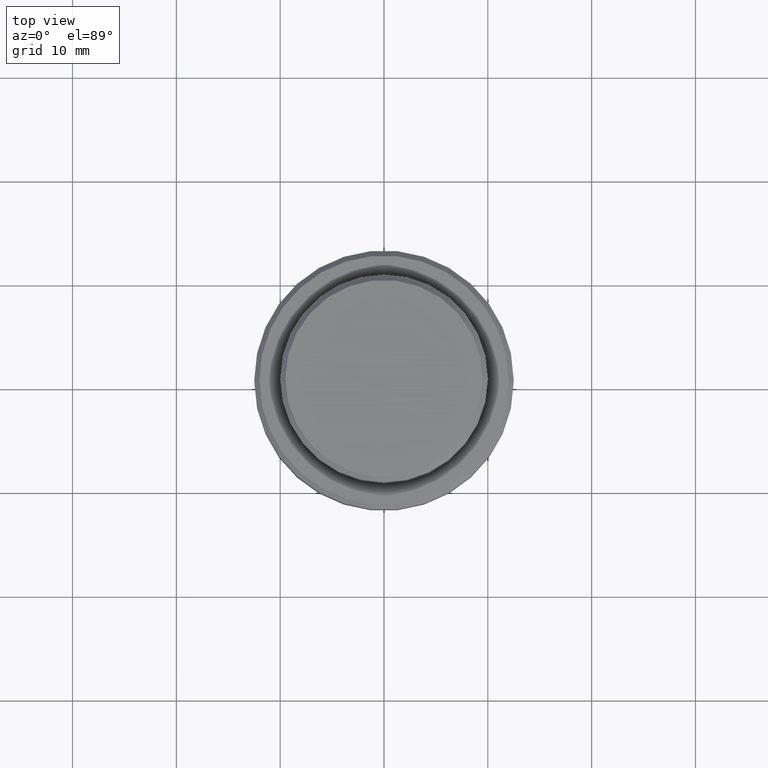
[diagram: clean part render]
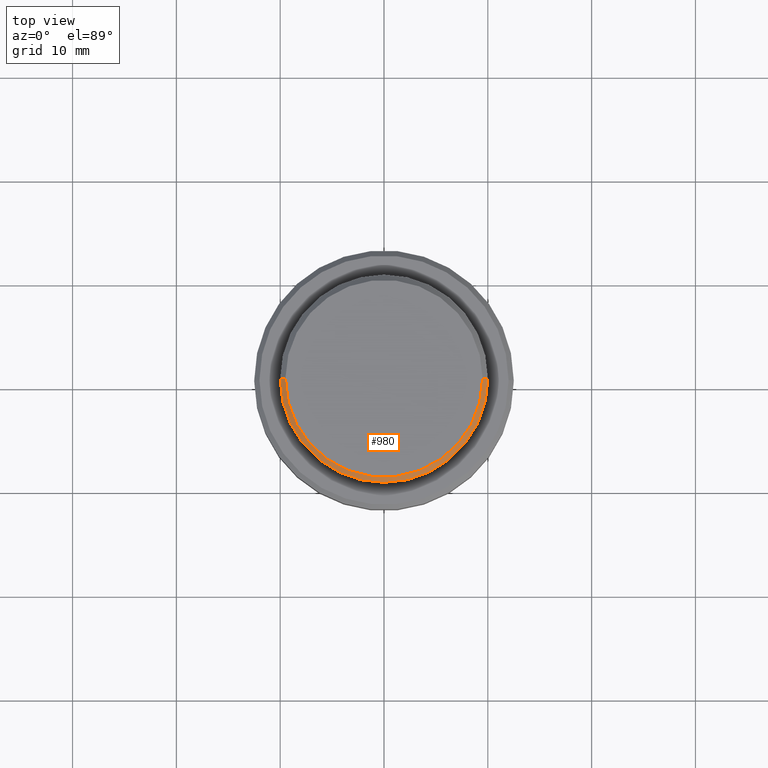
[diagram: same view with one face highlighted and labeled with its STEP entity id]
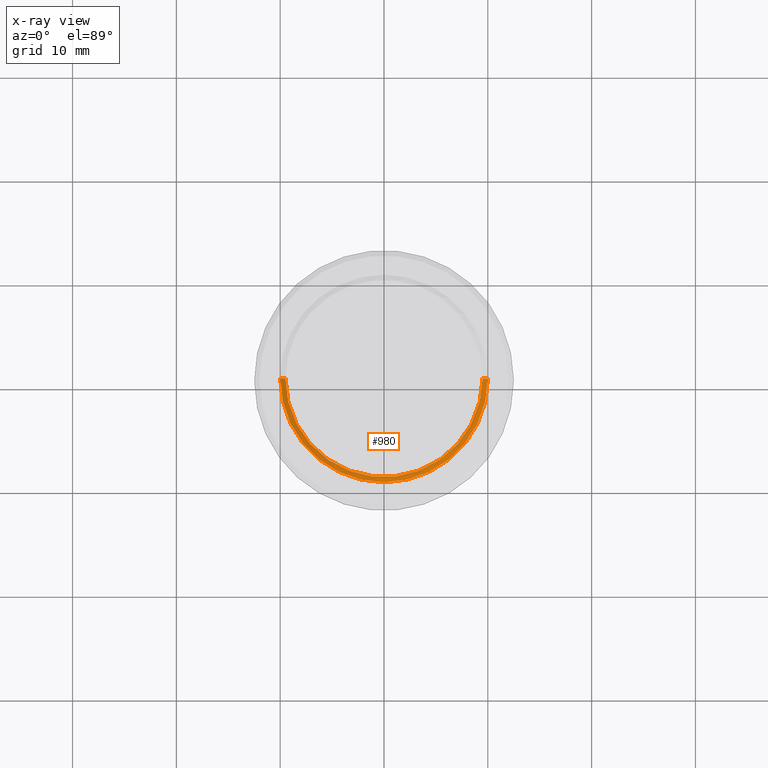
[diagram: x-ray of the same camera — body ghosted, the highlighted face saturated]
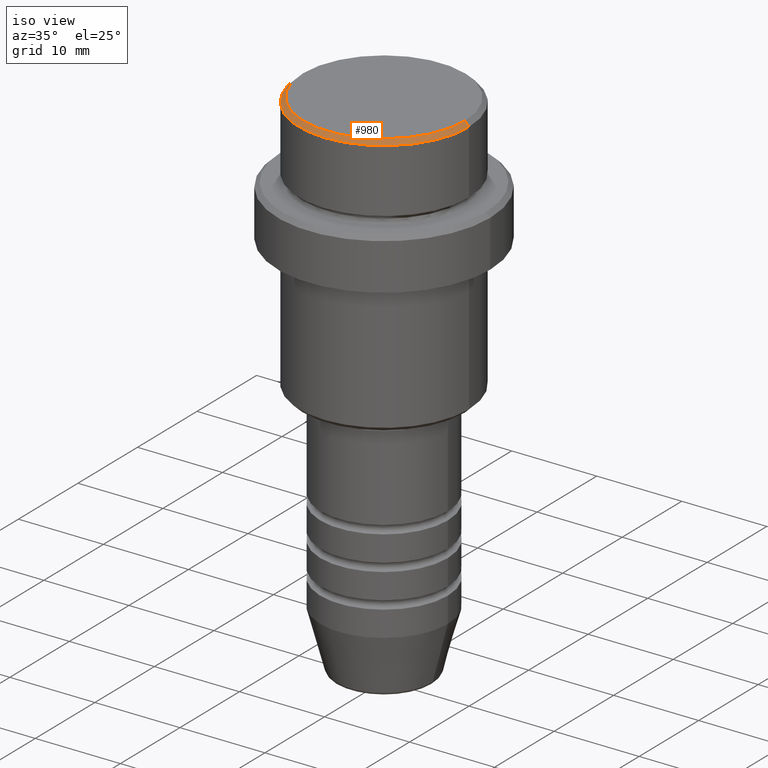
[diagram: same view with one face highlighted and labeled with its STEP entity id]
A machine part, top view. The second image highlights one B-rep face of the part: STEP entity #980.
The next image is the same camera in x-ray: the body ghosted, the highlighted face saturated — about 0% of this face is hidden behind the body in this view.
A second angle (iso view) of the same face is appended — the face is thin or edge-on in the first view.
In plain terms, the highlighted conical surface has half-angle 45 deg.
Its self-contained STEP definition (entity closure, byte-faithful):
#17 = CARTESIAN_POINT ( 'NONE',  ( 0.000000000000000000, 0.000000000000000000, -0.5000000000000038858 ) ) ;
#68 = VECTOR ( 'NONE', #693, 1000.000000000000114 ) ;
#73 = DIRECTION ( 'NONE',  ( 0.000000000000000000, 0.000000000000000000, -1.000000000000000000 ) ) ;
#94 = CONICAL_SURFACE ( 'NONE', #293, 9.499999999999994671, 0.7853981633974482790 ) ;
#123 = CARTESIAN_POINT ( 'NONE',  ( 9.999999999999998224, 0.000000000000000000, -0.5000000000000038858 ) ) ;
#132 = DIRECTION ( 'NONE',  ( 1.000000000000000000, 0.000000000000000000, 0.000000000000000000 ) ) ;
#138 = CARTESIAN_POINT ( 'NONE',  ( 9.499999999999994671, 1.163414459189984894E-15, 0.000000000000000000 ) ) ;
#156 = LINE ( 'NONE', #138, #68 ) ;
#207 = DIRECTION ( 'NONE',  ( -0.000000000000000000, -0.000000000000000000, 1.000000000000000000 ) ) ;
#210 = CIRCLE ( 'NONE', #417, 9.999999999999998224 ) ;
#293 = AXIS2_PLACEMENT_3D ( 'NONE', #408, #73, #632 ) ;
#296 = FACE_OUTER_BOUND ( 'NONE', #1029, .T. ) ;
#407 = VERTEX_POINT ( 'NONE', #123 ) ;
#408 = CARTESIAN_POINT ( 'NONE',  ( 0.000000000000000000, 0.000000000000000000, 0.000000000000000000 ) ) ;
#417 = AXIS2_PLACEMENT_3D ( 'NONE', #17, #917, #132 ) ;
#419 = VERTEX_POINT ( 'NONE', #1123 ) ;
#457 = CARTESIAN_POINT ( 'NONE',  ( -9.999999999999998224, 1.224646799147353059E-15, -0.5000000000000038858 ) ) ;
#487 = EDGE_CURVE ( 'NONE', #407, #1329, #210, .T. ) ;
#525 = ORIENTED_EDGE ( 'NONE', *, *, #1226, .T. ) ;
#529 = CIRCLE ( 'NONE', #1118, 9.499999999999994671 ) ;
#559 = ORIENTED_EDGE ( 'NONE', *, *, #487, .F. ) ;
#632 = DIRECTION ( 'NONE',  ( -1.000000000000000000, 0.000000000000000000, 0.000000000000000000 ) ) ;
#693 = DIRECTION ( 'NONE',  ( 0.7071067811865474617, 8.659560562354932858E-17, -0.7071067811865474617 ) ) ;
#890 = VERTEX_POINT ( 'NONE', #1132 ) ;
#917 = DIRECTION ( 'NONE',  ( 0.000000000000000000, 0.000000000000000000, -1.000000000000000000 ) ) ;
#940 = ORIENTED_EDGE ( 'NONE', *, *, #1183, .F. ) ;
#980 = ADVANCED_FACE ( 'NONE', ( #296 ), #94, .T. ) ;
#984 = DIRECTION ( 'NONE',  ( 1.000000000000000000, 0.000000000000000000, 0.000000000000000000 ) ) ;
#990 = LINE ( 'NONE', #1103, #1095 ) ;
#1029 = EDGE_LOOP ( 'NONE', ( #1350, #940, #525, #559 ) ) ;
#1088 = CARTESIAN_POINT ( 'NONE',  ( 0.000000000000000000, 0.000000000000000000, 0.000000000000000000 ) ) ;
#1095 = VECTOR ( 'NONE', #1214, 1000.000000000000114 ) ;
#1103 = CARTESIAN_POINT ( 'NONE',  ( -9.499999999999994671, 0.000000000000000000, 0.000000000000000000 ) ) ;
#1118 = AXIS2_PLACEMENT_3D ( 'NONE', #1088, #207, #984 ) ;
#1123 = CARTESIAN_POINT ( 'NONE',  ( -9.499999999999994671, 0.000000000000000000, 0.000000000000000000 ) ) ;
#1132 = CARTESIAN_POINT ( 'NONE',  ( 9.499999999999994671, 1.194030629168669075E-15, 0.000000000000000000 ) ) ;
#1183 = EDGE_CURVE ( 'NONE', #419, #890, #529, .T. ) ;
#1214 = DIRECTION ( 'NONE',  ( -0.7071067811865474617, 0.000000000000000000, -0.7071067811865474617 ) ) ;
#1226 = EDGE_CURVE ( 'NONE', #419, #1329, #990, .T. ) ;
#1252 = EDGE_CURVE ( 'NONE', #890, #407, #156, .T. ) ;
#1329 = VERTEX_POINT ( 'NONE', #457 ) ;
#1350 = ORIENTED_EDGE ( 'NONE', *, *, #1252, .F. ) ;